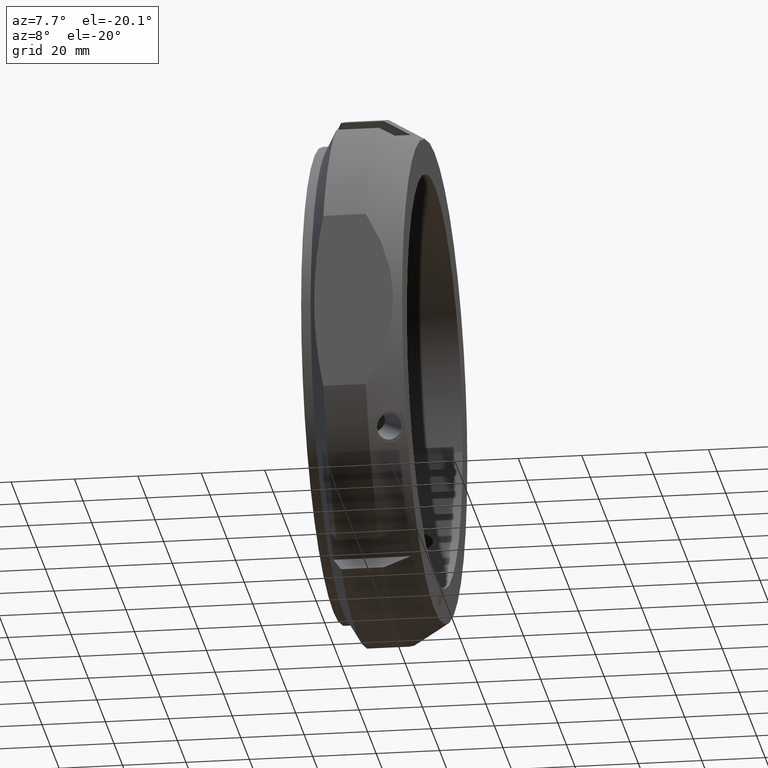
[diagram: clean part render]
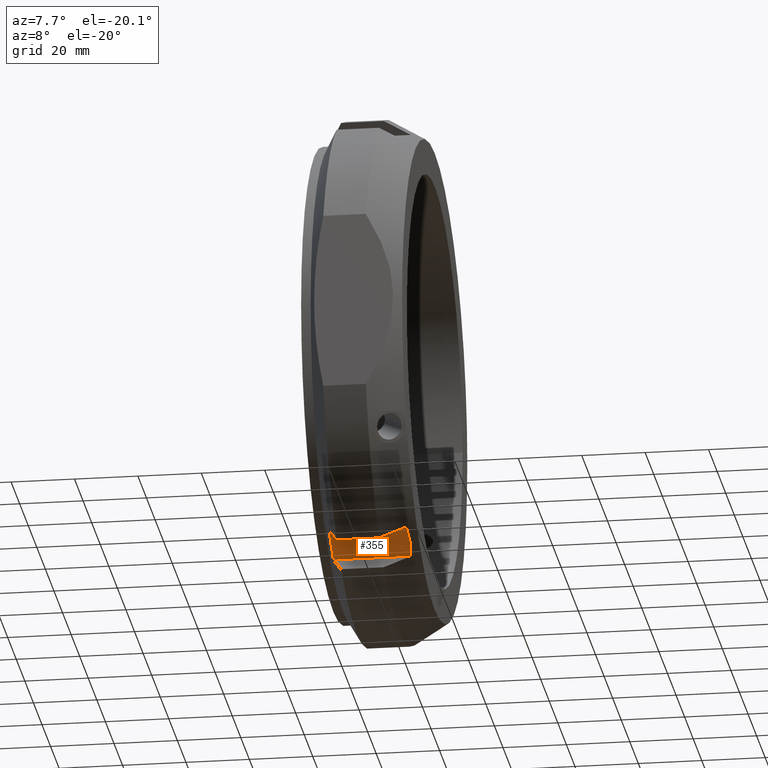
[diagram: same view with one face highlighted and labeled with its STEP entity id]
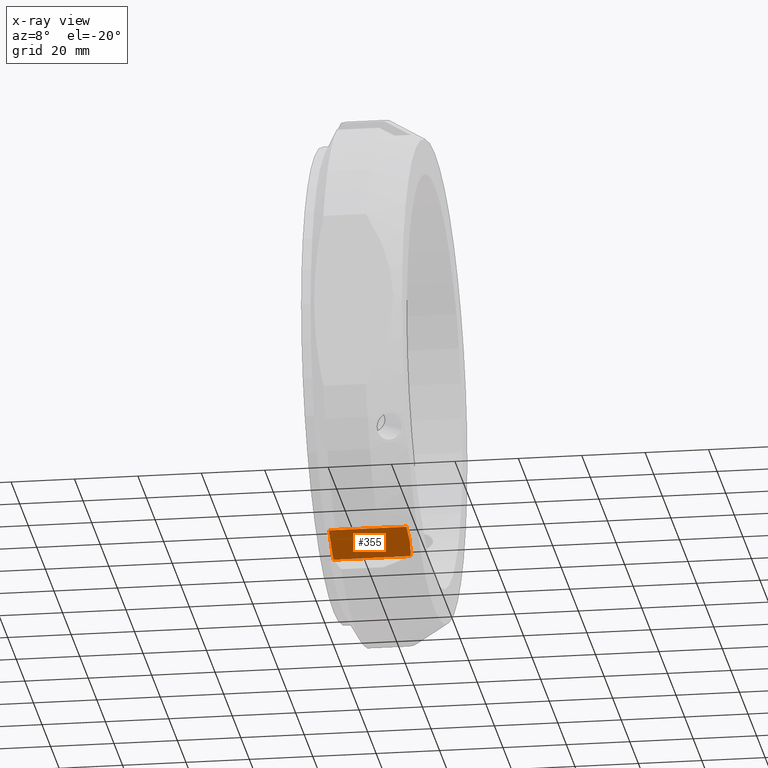
[diagram: x-ray of the same camera — body ghosted, the highlighted face saturated]
A machine part, auxiliary view. The second image highlights one B-rep face of the part: STEP entity #355.
The next image is the same camera in x-ray: the body ghosted, the highlighted face saturated — about 0% of this face is hidden behind the body in this view.
In plain terms, the highlighted planar face has unit normal (0, -0.5, -0.866).
Its self-contained STEP definition (entity closure, byte-faithful):
#217=CARTESIAN_POINT('',(4.57726959688666,-43.946152422706668,-64.116968793293992));
#218=VERTEX_POINT('',#217);
#234=CARTESIAN_POINT('',(29.000242016908835,-43.946152422706668,-64.116968793293992));
#235=VERTEX_POINT('',#234);
#236=CARTESIAN_POINT('',(4.57726959688666,-43.946152422706668,-64.116968793293992));
#237=DIRECTION('',(1.0,0.0,0.0));
#238=VECTOR('',#237,24.422972420022177);
#239=LINE('',#236,#238);
#240=EDGE_CURVE('',#218,#235,#239,.T.);
#273=CARTESIAN_POINT('',(4.577269596886655,-33.553847577293404,-70.116968793293978));
#274=VERTEX_POINT('',#273);
#296=CARTESIAN_POINT('',(29.000242016908825,-33.553847577293404,-70.116968793293978));
#297=VERTEX_POINT('',#296);
#311=CARTESIAN_POINT('',(4.577269596886655,-33.553847577293404,-70.116968793293978));
#312=DIRECTION('',(1.0,0.0,0.0));
#313=VECTOR('',#312,24.42297242002217);
#314=LINE('',#311,#313);
#315=EDGE_CURVE('',#274,#297,#314,.T.);
#320=CARTESIAN_POINT('',(0.0,-43.946152422706668,-64.116968793293992));
#321=DIRECTION('',(0.0,-0.5,-0.866025403784439));
#322=DIRECTION('',(0.0,0.866025403784439,-0.5));
#323=AXIS2_PLACEMENT_3D('',#320,#321,#322);
#324=PLANE('',#323);
#325=CARTESIAN_POINT('',(4.577269596886655,-33.553847577293404,-70.116968793293978));
#326=CARTESIAN_POINT('',(4.30988121801441,-38.750000000078479,-67.116968793248688));
#327=CARTESIAN_POINT('',(4.57726959688666,-43.946152422706668,-64.116968793293992));
#335=(BOUNDED_CURVE()B_SPLINE_CURVE(2,(#325,#326,#327),.UNSPECIFIED.,.F.,.U.)B_SPLINE_CURVE_WITH_KNOTS((3,3),(2.221478164812497,3.464762538264848),.UNSPECIFIED.)CURVE()GEOMETRIC_REPRESENTATION_ITEM()RATIONAL_B_SPLINE_CURVE((1.030715906850744,1.033800222181514,1.030715906850744))REPRESENTATION_ITEM(''));
#336=EDGE_CURVE('',#274,#218,#335,.T.);
#337=ORIENTED_EDGE('',*,*,#336,.F.);
#338=ORIENTED_EDGE('',*,*,#315,.T.);
#339=CARTESIAN_POINT('',(29.000242016908835,-43.946152422706668,-64.116968793293992));
#340=CARTESIAN_POINT('',(29.802407153554832,-38.749999999999872,-67.116968793294092));
#341=CARTESIAN_POINT('',(29.000242016908825,-33.553847577293404,-70.116968793293978));
#349=(BOUNDED_CURVE()B_SPLINE_CURVE(2,(#339,#340,#341),.UNSPECIFIED.,.F.,.U.)B_SPLINE_CURVE_WITH_KNOTS((3,3),(2.311270793068733,3.604808990030873),.UNSPECIFIED.)CURVE()GEOMETRIC_REPRESENTATION_ITEM()RATIONAL_B_SPLINE_CURVE((1.03071590685069,1.033800222181565,1.03071590685069))REPRESENTATION_ITEM(''));
#350=EDGE_CURVE('',#235,#297,#349,.T.);
#351=ORIENTED_EDGE('',*,*,#350,.F.);
#352=ORIENTED_EDGE('',*,*,#240,.F.);
#353=EDGE_LOOP('',(#337,#338,#351,#352));
#354=FACE_OUTER_BOUND('',#353,.T.);
#355=ADVANCED_FACE('',(#354),#324,.T.);